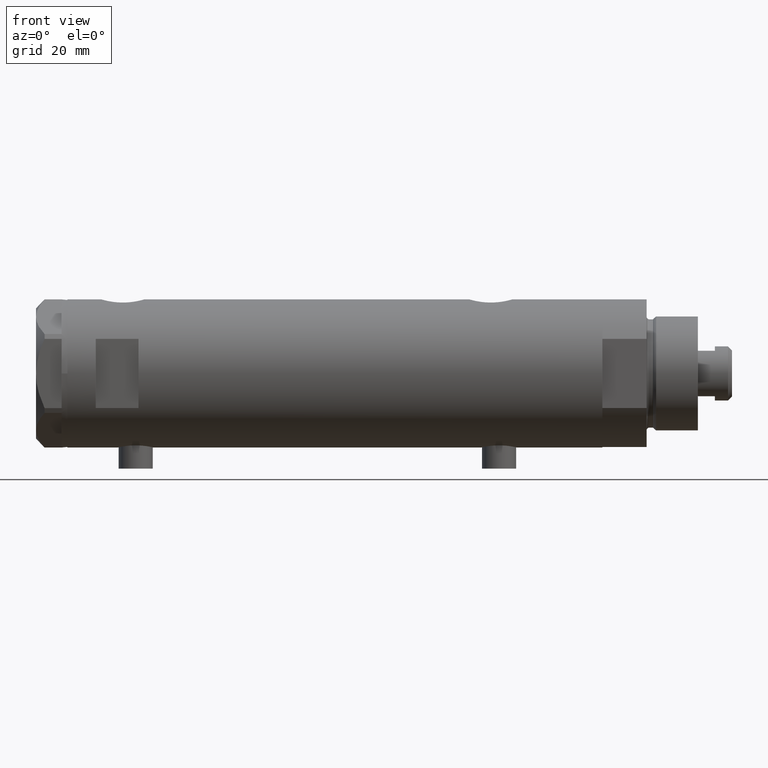
[diagram: clean part render]
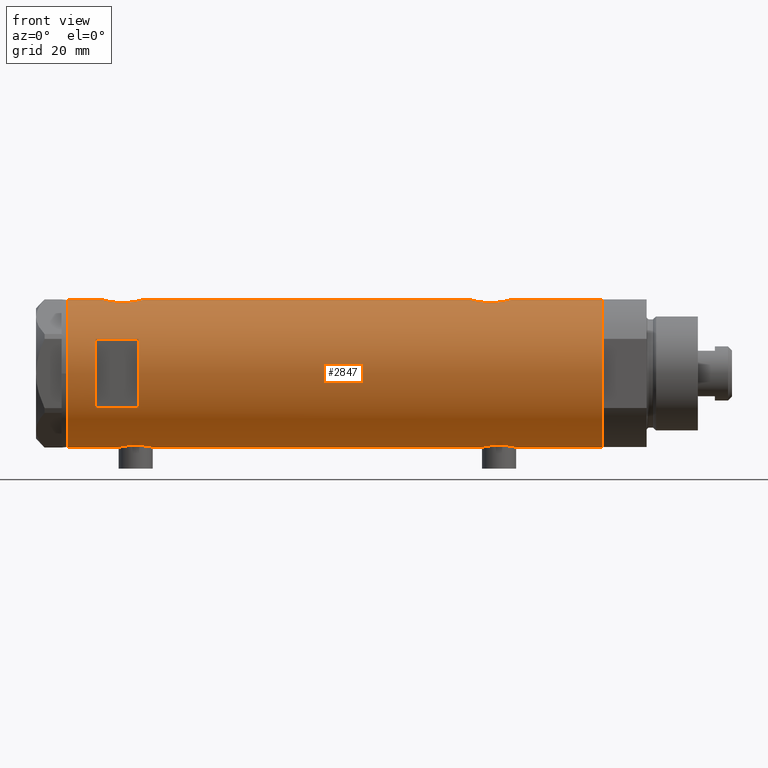
[diagram: same view with one face highlighted and labeled with its STEP entity id]
A machine part, front view. The second image highlights one B-rep face of the part: STEP entity #2847.
In plain terms, the highlighted cylindrical surface (partial cylindrical patch) has radius 26 mm, axis along (-1, -0, 0).
Its self-contained STEP definition (entity closure, byte-faithful):
#23 = CARTESIAN_POINT ( 'NONE',  ( -25.85288666140180069, -2.767917424206677524, 64.34257790010329359 ) ) ;
#36 = CARTESIAN_POINT ( 'NONE',  ( -25.81160981652327635, -3.129523010631801938, -63.06392973722074657 ) ) ;
#50 = AXIS2_PLACEMENT_3D ( 'NONE', #828, #2131, #2503 ) ;
#53 = CARTESIAN_POINT ( 'NONE',  ( 0.000000000000000000, 0.000000000000000000, 83.95000000000000284 ) ) ;
#71 = CARTESIAN_POINT ( 'NONE',  ( 0.000000000000000000, 0.000000000000000000, 68.95000000000008811 ) ) ;
#100 = CARTESIAN_POINT ( 'NONE',  ( 25.89059789403177447, -2.425642437452257383, -47.63622552757698969 ) ) ;
#122 = CARTESIAN_POINT ( 'NONE',  ( -25.74330903162726258, -3.648508829439215617, 75.02867714715800673 ) ) ;
#123 = VECTOR ( 'NONE', #4469, 1000.000000000000000 ) ;
#125 = CARTESIAN_POINT ( 'NONE',  ( 25.98599366666249466, -0.9828433289544072915, -47.29811598276526752 ) ) ;
#142 = DIRECTION ( 'NONE',  ( 0.000000000000000000, 0.000000000000000000, 1.000000000000000000 ) ) ;
#149 = CARTESIAN_POINT ( 'NONE',  ( -25.31538696791482224, -5.929326713517952818, 71.96796632208102551 ) ) ;
#158 = CARTESIAN_POINT ( 'NONE',  ( 25.59500516383205948, -4.575229401795803952, 68.50212244934583339 ) ) ;
#175 = CARTESIAN_POINT ( 'NONE',  ( 24.96672817551788270, -7.257586026187393458, -52.79615800278703119 ) ) ;
#183 = CARTESIAN_POINT ( 'NONE',  ( -25.67167563980648737, -4.129238867693854509, -62.35934056431106143 ) ) ;
#192 = CARTESIAN_POINT ( 'NONE',  ( 25.62983961939740141, -4.376509667782454649, -60.84558499042960733 ) ) ;
#226 = VERTEX_POINT ( 'NONE', #3401 ) ;
#237 = CARTESIAN_POINT ( 'NONE',  ( 25.93098857934040424, -1.953835360821274847, -62.00773664702559529 ) ) ;
#259 = CARTESIAN_POINT ( 'NONE',  ( 25.27534302296961854, -6.097250460344746159, -50.37590386902925843 ) ) ;
#304 = VERTEX_POINT ( 'NONE', #4218 ) ;
#306 = ORIENTED_EDGE ( 'NONE', *, *, #864, .F. ) ;
#338 = CARTESIAN_POINT ( 'NONE',  ( 24.89475831528844907, -7.500067228253129770, 73.95662571746466085 ) ) ;
#361 = ORIENTED_EDGE ( 'NONE', *, *, #437, .T. ) ;
#365 = CARTESIAN_POINT ( 'NONE',  ( 25.01107424167501136, -7.102941973849612012, 72.02937151337422961 ) ) ;
#366 = CARTESIAN_POINT ( 'NONE',  ( 0.000000000000000000, 0.000000000000000000, 93.95000000000000284 ) ) ;
#371 = CIRCLE ( 'NONE', #920, 26.00000000000000355 ) ;
#379 = LINE ( 'NONE', #1849, #2106 ) ;
#389 = VERTEX_POINT ( 'NONE', #4680 ) ;
#392 = CARTESIAN_POINT ( 'NONE',  ( 25.31004928890825312, -5.952041021437449508, 79.01980599883506784 ) ) ;
#400 = CARTESIAN_POINT ( 'NONE',  ( -25.95218276861526263, -1.627663810194431404, 63.90149019612397296 ) ) ;
#414 = CARTESIAN_POINT ( 'NONE',  ( 25.00829008792691965, -7.115081037226463678, 76.87301003740822125 ) ) ;
#423 = CARTESIAN_POINT ( 'NONE',  ( -25.42977453177915592, -5.420307583276858132, 66.81187728206637644 ) ) ;
#437 = EDGE_CURVE ( 'NONE', #1170, #389, #3562, .T. ) ;
#456 = FACE_OUTER_BOUND ( 'NONE', #4046, .T. ) ;
#460 = CARTESIAN_POINT ( 'NONE',  ( -25.95218276861526618, -1.627663810194431626, -63.69850980387604977 ) ) ;
#489 = VERTEX_POINT ( 'NONE', #4796 ) ;
#492 = CARTESIAN_POINT ( 'NONE',  ( -12.12435565298214080, -23.00000000000000355, 68.94999999999998863 ) ) ;
#517 = CARTESIAN_POINT ( 'NONE',  ( -25.57167894663063024, -4.701762988462085069, 74.07280450192421029 ) ) ;
#530 = LINE ( 'NONE', #3123, #1600 ) ;
#568 = CARTESIAN_POINT ( 'NONE',  ( -25.28680988956730147, -6.048472998962280300, 68.32372305811757940 ) ) ;
#569 = CARTESIAN_POINT ( 'NONE',  ( 25.17510548814053095, -6.503212750695464450, -50.98238212184652696 ) ) ;
#585 = CARTESIAN_POINT ( 'NONE',  ( -25.49846181844014481, -5.083495422175113632, 73.59177503382601060 ) ) ;
#602 = CARTESIAN_POINT ( 'NONE',  ( -25.25025691038241860, -6.198787452305317025, -58.47441165395796503 ) ) ;
#614 = CARTESIAN_POINT ( 'NONE',  ( 25.72912156655465665, -3.765948295762491238, -61.25442975399222689 ) ) ;
#626 = CARTESIAN_POINT ( 'NONE',  ( -25.92364458890659762, -2.026637113504532905, -51.72369009308527410 ) ) ;
#666 = CARTESIAN_POINT ( 'NONE',  ( -25.85385060263651269, -2.778671585188182913, -52.03685548695762719 ) ) ;
#698 = CARTESIAN_POINT ( 'NONE',  ( 26.00000000000000355, -3.975028449552882818E-20, 81.94999999999998863 ) ) ;
#748 = ORIENTED_EDGE ( 'NONE', *, *, #4461, .F. ) ;
#750 = CARTESIAN_POINT ( 'NONE',  ( 25.52449676677459678, -4.953491517965891155, 68.81325508665931068 ) ) ;
#751 = VECTOR ( 'NONE', #1400, 1000.000000000000000 ) ;
#786 = CARTESIAN_POINT ( 'NONE',  ( 25.89059789403177447, -2.425642437452259603, 81.56377447242300605 ) ) ;
#796 = CARTESIAN_POINT ( 'NONE',  ( -25.99036913299955742, -0.8159609457881448202, 63.73968856968108554 ) ) ;
#797 = CARTESIAN_POINT ( 'NONE',  ( 12.12435565298214080, -23.00000000000000355, 83.95000000000000284 ) ) ;
#828 = CARTESIAN_POINT ( 'NONE',  ( 0.000000000000000000, 0.000000000000000000, -93.95000000000000284 ) ) ;
#864 = EDGE_CURVE ( 'NONE', #489, #389, #2648, .T. ) ;
#873 = EDGE_LOOP ( 'NONE', ( #1314, #3168, #4818, #2717 ) ) ;
#880 = CARTESIAN_POINT ( 'NONE',  ( -25.25769689814629970, -6.168504065326076535, -58.67646635296745927 ) ) ;
#902 = CARTESIAN_POINT ( 'NONE',  ( -25.42883439573800430, -5.424786127492344789, -54.51918542739093709 ) ) ;
#912 = CARTESIAN_POINT ( 'NONE',  ( 24.96970063328116751, -7.247045583599693863, -56.69719214854801947 ) ) ;
#920 = AXIS2_PLACEMENT_3D ( 'NONE', #951, #4701, #4330 ) ;
#938 = CARTESIAN_POINT ( 'NONE',  ( -25.24022290516698774, -6.239518219915429320, 69.53402784061570685 ) ) ;
#940 = CARTESIAN_POINT ( 'NONE',  ( 24.95200646071794282, -7.307522494171283967, -56.45607564187280758 ) ) ;
#945 = CARTESIAN_POINT ( 'NONE',  ( 26.00000000000000355, -2.747580718823405516E-15, 66.95000000000000284 ) ) ;
#949 = CARTESIAN_POINT ( 'NONE',  ( -25.59645788645699582, -4.565358797148525660, -53.37669470796521409 ) ) ;
#951 = CARTESIAN_POINT ( 'NONE',  ( 0.000000000000000000, 0.000000000000000000, -93.95000000000000284 ) ) ;
#961 = CARTESIAN_POINT ( 'NONE',  ( 25.00829008792691255, -7.115081037226466343, -52.32698996259181001 ) ) ;
#965 = CARTESIAN_POINT ( 'NONE',  ( 25.62983961939740496, -4.376509667782460866, 68.35441500957041683 ) ) ;
#1026 = EDGE_CURVE ( 'NONE', #2994, #4811, #4562, .T. ) ;
#1097 = CARTESIAN_POINT ( 'NONE',  ( 24.92415241886516952, -7.401968919186677986, 75.68323537444817362 ) ) ;
#1121 = CARTESIAN_POINT ( 'NONE',  ( 25.48871066912673911, -5.133852125086511897, 68.97709693256024366 ) ) ;
#1130 = EDGE_CURVE ( 'NONE', #4285, #4133, #3666, .T. ) ;
#1150 = CARTESIAN_POINT ( 'NONE',  ( 25.11342038069226845, -6.734617143597199984, 77.78770695790493050 ) ) ;
#1170 = VERTEX_POINT ( 'NONE', #2142 ) ;
#1213 = CARTESIAN_POINT ( 'NONE',  ( 26.00000000000000355, 0.000000000000000000, -93.95000000000000284 ) ) ;
#1263 = CARTESIAN_POINT ( 'NONE',  ( 25.31004928890824957, -5.952041021437452173, -50.18019400116494211 ) ) ;
#1266 = VERTEX_POINT ( 'NONE', #1213 ) ;
#1267 = VERTEX_POINT ( 'NONE', #797 ) ;
#1275 = CARTESIAN_POINT ( 'NONE',  ( -25.38744165544137488, -5.612847683295917989, -60.42987583238479488 ) ) ;
#1282 = CARTESIAN_POINT ( 'NONE',  ( -25.99999999999999289, -0.4144764235405741237, 76.19999999999998863 ) ) ;
#1297 = CARTESIAN_POINT ( 'NONE',  ( -25.24765475072630139, -6.209883762780014749, -56.83321815644903552 ) ) ;
#1308 = CARTESIAN_POINT ( 'NONE',  ( -25.64593536028936427, -4.278686337618962554, 74.51031602960878786 ) ) ;
#1314 = ORIENTED_EDGE ( 'NONE', *, *, #3191, .F. ) ;
#1332 = VECTOR ( 'NONE', #1376, 1000.000000000000000 ) ;
#1334 = CARTESIAN_POINT ( 'NONE',  ( -25.85385060263650914, -2.778671585188189574, 75.56314451304240265 ) ) ;
#1336 = CARTESIAN_POINT ( 'NONE',  ( 24.90947356773249766, -7.451722770779341865, -55.73190841828151321 ) ) ;
#1371 = EDGE_CURVE ( 'NONE', #1267, #226, #2808, .T. ) ;
#1376 = DIRECTION ( 'NONE',  ( 0.000000000000000000, 0.000000000000000000, 1.000000000000000000 ) ) ;
#1400 = DIRECTION ( 'NONE',  ( 0.000000000000000000, 0.000000000000000000, 1.000000000000000000 ) ) ;
#1537 = CARTESIAN_POINT ( 'NONE',  ( -25.78943824387523520, -3.306687742228914484, 64.64245861216537037 ) ) ;
#1552 = CARTESIAN_POINT ( 'NONE',  ( 25.11243836838846022, -6.738202653785830165, 71.12043350844841427 ) ) ;
#1576 = ORIENTED_EDGE ( 'NONE', *, *, #2464, .F. ) ;
#1580 = DIRECTION ( 'NONE',  ( 1.776356839400250465E-15, 1.000000000000000000, 4.803849625781927035E-15 ) ) ;
#1592 = CARTESIAN_POINT ( 'NONE',  ( -26.00000000000000355, 1.227111019500118713E-15, 76.20000000000001705 ) ) ;
#1596 = CARTESIAN_POINT ( 'NONE',  ( -25.87202607293667000, -2.583404329177994008, -63.34473666854513141 ) ) ;
#1600 = VECTOR ( 'NONE', #2776, 1000.000000000000000 ) ;
#1635 = CARTESIAN_POINT ( 'NONE',  ( 25.52567976009756379, -4.956266804246105551, -49.09980072540905383 ) ) ;
#1692 = CARTESIAN_POINT ( 'NONE',  ( -25.31551596256916170, -5.928819821281962277, -59.67011491904084153 ) ) ;
#1701 = CARTESIAN_POINT ( 'NONE',  ( -25.95206678899177888, -1.628763264760248353, 75.99800813330216442 ) ) ;
#1713 = CARTESIAN_POINT ( 'NONE',  ( 25.98569226047905900, -0.9886551788957337328, 66.99917623399824151 ) ) ;
#1716 = EDGE_CURVE ( 'NONE', #1266, #4133, #379, .T. ) ;
#1721 = CARTESIAN_POINT ( 'NONE',  ( -25.23763877699557412, -6.249927116972443741, 69.74164472334535958 ) ) ;
#1734 = ORIENTED_EDGE ( 'NONE', *, *, #1130, .F. ) ;
#1746 = CARTESIAN_POINT ( 'NONE',  ( 25.98569226047905190, -0.9886551788957271825, -62.20082376600176133 ) ) ;
#1772 = CARTESIAN_POINT ( 'NONE',  ( 24.91324908721445652, -7.438459228814655155, -53.75982500625809024 ) ) ;
#1807 = CARTESIAN_POINT ( 'NONE',  ( -25.81232680456766815, -3.137210741985122286, -52.22886342778421209 ) ) ;
#1817 = LINE ( 'NONE', #4038, #3750 ) ;
#1849 = CARTESIAN_POINT ( 'NONE',  ( 26.00000000000000355, 0.000000000000000000, -93.95000000000000284 ) ) ;
#1858 = CARTESIAN_POINT ( 'NONE',  ( 25.78993643992928853, -3.329561377902402697, -48.01178439721262947 ) ) ;
#1862 = CIRCLE ( 'NONE', #3106, 26.00000000000000355 ) ;
#1893 = CARTESIAN_POINT ( 'NONE',  ( 24.89854802586675575, -7.487520416261734368, 74.94815683577905929 ) ) ;
#1907 = ORIENTED_EDGE ( 'NONE', *, *, #1026, .F. ) ;
#1921 = CARTESIAN_POINT ( 'NONE',  ( 24.89478872726945724, -7.499966281647698629, 74.69821850634782834 ) ) ;
#1929 = CARTESIAN_POINT ( 'NONE',  ( -25.31551596256916525, -5.928819821281963165, 67.92988508095919542 ) ) ;
#1930 = DIRECTION ( 'NONE',  ( -0.000000000000000000, 0.000000000000000000, -1.000000000000000000 ) ) ;
#1966 = CYLINDRICAL_SURFACE ( 'NONE', #50, 26.00000000000000355 ) ;
#1971 = CARTESIAN_POINT ( 'NONE',  ( -25.92425332714051223, -2.018894156999442746, -63.57896120675329854 ) ) ;
#1973 = CARTESIAN_POINT ( 'NONE',  ( -26.00000000000000355, -8.503928565788675107E-16, -51.39999999999999858 ) ) ;
#1983 = CARTESIAN_POINT ( 'NONE',  ( 26.00000000000001066, -0.4910237949823163528, -47.25000000000001421 ) ) ;
#2003 = CARTESIAN_POINT ( 'NONE',  ( -26.00000000000000355, 1.227111019500118713E-15, 76.20000000000001705 ) ) ;
#2018 = CARTESIAN_POINT ( 'NONE',  ( -25.28632996747171546, -6.050474653715422590, -56.03088129158463460 ) ) ;
#2056 = CARTESIAN_POINT ( 'NONE',  ( -25.71926338401910073, -3.813768894920909425, 74.90572139833817289 ) ) ;
#2078 = CARTESIAN_POINT ( 'NONE',  ( -25.25025691038242215, -6.198787452305312584, 69.12558834604207902 ) ) ;
#2079 = CARTESIAN_POINT ( 'NONE',  ( 25.48871066912673200, -5.133852125086511009, -60.22290306743978050 ) ) ;
#2083 = CARTESIAN_POINT ( 'NONE',  ( 25.88994451797512397, -2.432613607265604383, 67.33859031286799279 ) ) ;
#2096 = CARTESIAN_POINT ( 'NONE',  ( -25.67063510297210271, -4.128418051804843003, 74.64682575271267240 ) ) ;
#2106 = VECTOR ( 'NONE', #3002, 1000.000000000000000 ) ;
#2122 = CARTESIAN_POINT ( 'NONE',  ( 25.88994451797511331, -2.432613607265599498, -61.86140968713201005 ) ) ;
#2131 = DIRECTION ( 'NONE',  ( 0.000000000000000000, 0.000000000000000000, 1.000000000000000000 ) ) ;
#2142 = CARTESIAN_POINT ( 'NONE',  ( 26.00000000000000355, -3.975028449552882818E-20, 81.94999999999998863 ) ) ;
#2178 = CARTESIAN_POINT ( 'NONE',  ( -26.00000000000000355, -8.503928565788675107E-16, -51.39999999999999858 ) ) ;
#2182 = CARTESIAN_POINT ( 'NONE',  ( 24.91324908721446008, -7.438459228814657820, 75.44017499374190550 ) ) ;
#2191 = CARTESIAN_POINT ( 'NONE',  ( -26.00000000000000355, 3.184081677783118585E-15, -93.95000000000000284 ) ) ;
#2201 = ORIENTED_EDGE ( 'NONE', *, *, #3944, .T. ) ;
#2214 = LINE ( 'NONE', #2191, #123 ) ;
#2224 = VERTEX_POINT ( 'NONE', #4839 ) ;
#2225 = CARTESIAN_POINT ( 'NONE',  ( 25.93085545515512891, -1.956676574435509686, -47.49272963169730843 ) ) ;
#2245 = EDGE_CURVE ( 'NONE', #4811, #304, #2214, .T. ) ;
#2264 = CARTESIAN_POINT ( 'NONE',  ( 25.27534302296962565, -6.097250460344746159, 78.82409613097077283 ) ) ;
#2295 = CARTESIAN_POINT ( 'NONE',  ( -25.72076778631230454, -3.815670258243488266, -62.61687810531882548 ) ) ;
#2303 = CARTESIAN_POINT ( 'NONE',  ( -25.52190669608696183, -4.968444991210429151, 66.13658907807516130 ) ) ;
#2329 = CARTESIAN_POINT ( 'NONE',  ( -26.00000000000000355, 3.184077527325983904E-15, 63.70000000000000995 ) ) ;
#2357 = CARTESIAN_POINT ( 'NONE',  ( -26.00000000000001066, -0.4086738135806035066, 63.70000000000000995 ) ) ;
#2382 = VERTEX_POINT ( 'NONE', #3071 ) ;
#2392 = CARTESIAN_POINT ( 'NONE',  ( -25.23758491649666880, -6.250144606721711682, -57.23988300428195686 ) ) ;
#2393 = CARTESIAN_POINT ( 'NONE',  ( 26.00000000000000355, 0.000000000000000000, -93.95000000000000284 ) ) ;
#2405 = VERTEX_POINT ( 'NONE', #2581 ) ;
#2426 = CARTESIAN_POINT ( 'NONE',  ( 25.01107424167501136, -7.102941973849614676, -57.17062848662576613 ) ) ;
#2446 = CARTESIAN_POINT ( 'NONE',  ( -25.28632996747172967, -6.050474653715409268, 71.56911870841541656 ) ) ;
#2448 = CARTESIAN_POINT ( 'NONE',  ( 25.03461301890608581, -7.019803056070506031, -57.40183183106895370 ) ) ;
#2464 = EDGE_CURVE ( 'NONE', #1170, #2224, #4707, .T. ) ;
#2467 = CARTESIAN_POINT ( 'NONE',  ( 24.92415241886515176, -7.401968919186680651, -53.51676462555185054 ) ) ;
#2490 = CARTESIAN_POINT ( 'NONE',  ( 24.89475831528845262, -7.500067228253130658, -55.24337428253536331 ) ) ;
#2503 = DIRECTION ( 'NONE',  ( 1.000000000000000000, 0.000000000000000000, 0.000000000000000000 ) ) ;
#2516 = CARTESIAN_POINT ( 'NONE',  ( 25.11342038069227200, -6.734617143597207978, -51.41229304209507234 ) ) ;
#2518 = CARTESIAN_POINT ( 'NONE',  ( 26.00000000000000355, -3.975025925197986111E-20, -47.25000000000000000 ) ) ;
#2554 = CARTESIAN_POINT ( 'NONE',  ( 25.38125492692910967, -5.649348210287292282, 69.49305665653604080 ) ) ;
#2577 = CARTESIAN_POINT ( 'NONE',  ( 26.00000000000000355, 0.000000000000000000, -93.95000000000000284 ) ) ;
#2581 = CARTESIAN_POINT ( 'NONE',  ( -26.00000000000000355, 3.184081677783118585E-15, -93.95000000000000284 ) ) ;
#2585 = CARTESIAN_POINT ( 'NONE',  ( -26.00000000000000355, 3.184081677783118585E-15, -93.95000000000000284 ) ) ;
#2633 = CARTESIAN_POINT ( 'NONE',  ( -25.78943824387522454, -3.306687742228910487, -62.95754138783468790 ) ) ;
#2642 = CARTESIAN_POINT ( 'NONE',  ( -25.92425332714051933, -2.018894156999441858, 64.02103879324673130 ) ) ;
#2648 = CIRCLE ( 'NONE', #4113, 26.00000000000000355 ) ;
#2649 = ORIENTED_EDGE ( 'NONE', *, *, #3281, .T. ) ;
#2664 = CARTESIAN_POINT ( 'NONE',  ( 24.96672817551789691, -7.257586026187390793, 76.40384199721299296 ) ) ;
#2673 = CARTESIAN_POINT ( 'NONE',  ( -25.57228991600092272, -4.705691472451695390, 65.81660309875348958 ) ) ;
#2717 = ORIENTED_EDGE ( 'NONE', *, *, #2966, .F. ) ;
#2776 = DIRECTION ( 'NONE',  ( 0.000000000000000000, 0.000000000000000000, 1.000000000000000000 ) ) ;
#2781 = CARTESIAN_POINT ( 'NONE',  ( -25.28680988956729436, -6.048472998962281189, -59.27627694188244334 ) ) ;
#2808 = CIRCLE ( 'NONE', #4290, 26.00000000000000355 ) ;
#2811 = CARTESIAN_POINT ( 'NONE',  ( 25.30930190055640239, -5.959775463244125326, -59.32974043478028392 ) ) ;
#2826 = VERTEX_POINT ( 'NONE', #1592 ) ;
#2833 = CARTESIAN_POINT ( 'NONE',  ( 25.52449676677459678, -4.953491517965876945, -60.38674491334074190 ) ) ;
#2841 = CARTESIAN_POINT ( 'NONE',  ( -25.23763877699556701, -6.249927116972449070, -57.85835527665467026 ) ) ;
#2847 = ADVANCED_FACE ( 'NONE', ( #456, #3818 ), #1966, .T. ) ;
#2848 = CARTESIAN_POINT ( 'NONE',  ( -25.38662204309616399, -5.616507264474307703, 72.72199377719323365 ) ) ;
#2859 = CARTESIAN_POINT ( 'NONE',  ( -25.74330903162726614, -3.648508829439221390, -52.57132285284203022 ) ) ;
#2875 = CARTESIAN_POINT ( 'NONE',  ( 25.11243836838845667, -6.738202653785825724, -58.07956649155156725 ) ) ;
#2887 = ORIENTED_EDGE ( 'NONE', *, *, #2245, .F. ) ;
#2897 = CARTESIAN_POINT ( 'NONE',  ( 26.00000000000000355, 3.343657407582877388E-16, -62.25000000000000000 ) ) ;
#2919 = DIRECTION ( 'NONE',  ( -0.000000000000000000, -0.000000000000000000, -1.000000000000000000 ) ) ;
#2932 = B_SPLINE_CURVE_WITH_KNOTS ( 'NONE', 3,
 ( #2329, #2357, #796, #400, #2642, #3387, #23, #3833, #1537, #3024, #4522, #2673, #2303, #423, #3781, #1929, #568, #3929, #2078, #938, #1721, #3209, #3950, #2446, #149, #2848, #4251, #585, #3531, #517, #4643, #1308, #2096, #2056, #122, #4686, #1334, #4664, #1701, #4339, #1282, #2003 ),
 .UNSPECIFIED., .F., .F.,
 ( 4, 2, 2, 2, 2, 2, 2, 2, 2, 2, 2, 2, 2, 2, 2, 2, 2, 2, 2, 2, 4 ),
 ( 0.01961238453869444676, 0.02083783025472769543, 0.02206327597076094410, 0.02267599882877755976, 0.02328872168679417543, 0.02451416740282743104, 0.02573961311886067971, 0.02696505883489393532, 0.02819050455092719093, 0.02880322740894379618, 0.02941595026696040144, 0.03064139598299361195, 0.03186684169902682245, 0.03309228741506003296, 0.03370501027307663822, 0.03431773313109324347, 0.03493045598910984872, 0.03554317884712646092, 0.03676862456315967143, 0.03799407027919288193, 0.03921951599522609938 ),
 .UNSPECIFIED. ) ;
#2966 = EDGE_CURVE ( 'NONE', #2382, #1267, #3615, .T. ) ;
#2990 = CARTESIAN_POINT ( 'NONE',  ( -25.85288666140180069, -2.767917424206677968, -63.25742209989670783 ) ) ;
#2994 = VERTEX_POINT ( 'NONE', #4373 ) ;
#3002 = DIRECTION ( 'NONE',  ( 0.000000000000000000, 0.000000000000000000, 1.000000000000000000 ) ) ;
#3003 = VECTOR ( 'NONE', #3010, 1000.000000000000000 ) ;
#3010 = DIRECTION ( 'NONE',  ( 0.000000000000000000, 0.000000000000000000, 1.000000000000000000 ) ) ;
#3024 = CARTESIAN_POINT ( 'NONE',  ( -25.72076778631230098, -3.815670258243490043, 64.98312189468120437 ) ) ;
#3044 = CARTESIAN_POINT ( 'NONE',  ( 25.98599366666249466, -0.9828433289544105111, 81.90188401723473532 ) ) ;
#3071 = CARTESIAN_POINT ( 'NONE',  ( 12.12435565298214080, -23.00000000000000355, 68.94999999999998863 ) ) ;
#3106 = AXIS2_PLACEMENT_3D ( 'NONE', #71, #3455, #1580 ) ;
#3116 = CARTESIAN_POINT ( 'NONE',  ( 25.41756773306326522, -5.475260495868973898, -49.61859126343051685 ) ) ;
#3123 = CARTESIAN_POINT ( 'NONE',  ( -26.00000000000000355, 3.184081677783118585E-15, -93.95000000000000284 ) ) ;
#3168 = ORIENTED_EDGE ( 'NONE', *, *, #4571, .F. ) ;
#3172 = CARTESIAN_POINT ( 'NONE',  ( -25.31538696791482224, -5.929326713517960812, -55.63203367791898302 ) ) ;
#3183 = VERTEX_POINT ( 'NONE', #492 ) ;
#3191 = EDGE_CURVE ( 'NONE', #3183, #2382, #1862, .T. ) ;
#3209 = CARTESIAN_POINT ( 'NONE',  ( -25.23758491649666524, -6.250144606721703688, 70.36011699571805877 ) ) ;
#3219 = CARTESIAN_POINT ( 'NONE',  ( -25.99009752186833211, -0.8230863847107499076, -51.44082928593319082 ) ) ;
#3254 = CARTESIAN_POINT ( 'NONE',  ( 12.12435565298214080, -23.00000000000000355, -93.95000000000000284 ) ) ;
#3257 = CARTESIAN_POINT ( 'NONE',  ( 25.38125492692910612, -5.649348210287294059, -59.70694334346394072 ) ) ;
#3281 = EDGE_CURVE ( 'NONE', #2405, #1266, #371, .T. ) ;
#3293 = CARTESIAN_POINT ( 'NONE',  ( -26.00000000000000355, -0.4144764235405725139, -51.39999999999999147 ) ) ;
#3323 = CARTESIAN_POINT ( 'NONE',  ( 25.52567976009756379, -4.956266804246106439, 80.10019927459092060 ) ) ;
#3348 = LINE ( 'NONE', #2577, #3003 ) ;
#3351 = CARTESIAN_POINT ( 'NONE',  ( 24.90947356773250121, -7.451722770779340088, 73.46809158171848253 ) ) ;
#3387 = CARTESIAN_POINT ( 'NONE',  ( -25.87202607293667000, -2.583404329177993120, 64.25526333145488422 ) ) ;
#3399 = CARTESIAN_POINT ( 'NONE',  ( 25.03461301890608226, -7.019803056070506031, 71.79816816893104203 ) ) ;
#3401 = CARTESIAN_POINT ( 'NONE',  ( -12.12435565298214080, -23.00000000000000355, 83.95000000000000284 ) ) ;
#3455 = DIRECTION ( 'NONE',  ( -0.000000000000000000, -4.625929269271486900E-15, 1.000000000000000000 ) ) ;
#3490 = EDGE_CURVE ( 'NONE', #2405, #2994, #530, .T. ) ;
#3519 = CARTESIAN_POINT ( 'NONE',  ( -25.42977453177915592, -5.420307583276862573, -60.78812271793365340 ) ) ;
#3531 = CARTESIAN_POINT ( 'NONE',  ( -25.52274351135604746, -4.960534548086194206, 73.75751745340734544 ) ) ;
#3555 = CARTESIAN_POINT ( 'NONE',  ( 26.00000000000000711, -0.4982617809740558790, 66.95000000000001705 ) ) ;
#3562 = LINE ( 'NONE', #2393, #4739 ) ;
#3607 = CARTESIAN_POINT ( 'NONE',  ( -25.64593536028936782, -4.278686337618967883, -53.08968397039122777 ) ) ;
#3615 = LINE ( 'NONE', #3254, #751 ) ;
#3618 = CARTESIAN_POINT ( 'NONE',  ( 24.89854802586676286, -7.487520416261737921, -54.25184316422095065 ) ) ;
#3663 = CARTESIAN_POINT ( 'NONE',  ( 24.95200646071794637, -7.307522494171281302, 72.74392435812723079 ) ) ;
#3666 = B_SPLINE_CURVE_WITH_KNOTS ( 'NONE', 3,
 ( #4272, #1983, #125, #2225, #100, #1858, #4595, #4230, #1635, #3116, #4621, #1263, #259, #569, #2516, #961, #175, #2467, #1772, #3618, #3999, #2490, #1336, #940, #912, #2426, #2448, #2875, #4366, #2811, #3257, #2079, #2833, #3951, #192, #614, #3977, #2122, #237, #1746, #4762, #2897 ),
 .UNSPECIFIED., .F., .F.,
 ( 4, 2, 2, 2, 2, 2, 2, 2, 2, 2, 2, 2, 2, 2, 2, 2, 2, 2, 2, 2, 4 ),
 ( 0.02357432247332888128, 0.02504731828495719570, 0.02652031409658551359, 0.02799330990821382800, 0.02946630571984214589, 0.03020280362565630136, 0.03093930153147046030, 0.03241229734309879207, 0.03388529315472712383, 0.03462179106054129318, 0.03535828896635545560, 0.03683128477798380818, 0.03756778268379799834, 0.03830428058961218157, 0.03977727640124056885, 0.04125027221286896306, 0.04198677011868315323, 0.04272326802449734340, 0.04419626383612573067, 0.04566925964775411795, 0.04714225545938250522 ),
 .UNSPECIFIED. ) ;
#3684 = CARTESIAN_POINT ( 'NONE',  ( -25.67063510297209916, -4.128418051804850109, -52.95317424728735034 ) ) ;
#3690 = CARTESIAN_POINT ( 'NONE',  ( 25.78993643992928853, -3.329561377902403585, 81.18821560278736627 ) ) ;
#3717 = CARTESIAN_POINT ( 'NONE',  ( 25.17510548814052740, -6.503212750695460009, 78.21761787815347589 ) ) ;
#3745 = CARTESIAN_POINT ( 'NONE',  ( 25.59665538672496155, -4.580438224580674067, 80.40889127712388529 ) ) ;
#3750 = VECTOR ( 'NONE', #2919, 1000.000000000000000 ) ;
#3781 = CARTESIAN_POINT ( 'NONE',  ( -25.38744165544136777, -5.612847683295913548, 67.17012416761525628 ) ) ;
#3818 = FACE_BOUND ( 'NONE', #873, .T. ) ;
#3823 = CARTESIAN_POINT ( 'NONE',  ( -25.99036913299956097, -0.8159609457881454864, -63.86031143031890878 ) ) ;
#3833 = CARTESIAN_POINT ( 'NONE',  ( -25.81160981652327635, -3.129523010631801494, 64.53607026277929037 ) ) ;
#3871 = CARTESIAN_POINT ( 'NONE',  ( -25.57228991600092627, -4.705691472451703383, -61.78339690124654027 ) ) ;
#3929 = CARTESIAN_POINT ( 'NONE',  ( -25.25769689814630325, -6.168504065326069430, 68.92353364703252794 ) ) ;
#3944 = EDGE_CURVE ( 'NONE', #4285, #2224, #3348, .T. ) ;
#3950 = CARTESIAN_POINT ( 'NONE',  ( -25.24765475072630139, -6.209883762780004091, 70.76678184355101564 ) ) ;
#3951 = CARTESIAN_POINT ( 'NONE',  ( 25.59500516383205593, -4.575229401795787965, -60.69787755065421919 ) ) ;
#3957 = CARTESIAN_POINT ( 'NONE',  ( 25.78902964777117290, -3.336582972512956768, 67.71524159542266830 ) ) ;
#3961 = ORIENTED_EDGE ( 'NONE', *, *, #4697, .F. ) ;
#3965 = CARTESIAN_POINT ( 'NONE',  ( -25.49846181844014126, -5.083495422175140277, -54.00822496617402635 ) ) ;
#3975 = LINE ( 'NONE', #2585, #1332 ) ;
#3977 = CARTESIAN_POINT ( 'NONE',  ( 25.78902964777116935, -3.336582972512946554, -61.48475840457738428 ) ) ;
#3994 = DIRECTION ( 'NONE',  ( 0.000000000000000000, 0.000000000000000000, 1.000000000000000000 ) ) ;
#3999 = CARTESIAN_POINT ( 'NONE',  ( 24.89478872726946079, -7.499966281647702182, -54.50178149365218161 ) ) ;
#4010 = CARTESIAN_POINT ( 'NONE',  ( -25.71926338401910428, -3.813768894920914754, -52.69427860166185695 ) ) ;
#4034 = CARTESIAN_POINT ( 'NONE',  ( 25.41756773306325101, -5.475260495868973898, 79.58140873656945757 ) ) ;
#4038 = CARTESIAN_POINT ( 'NONE',  ( -12.12435565298214080, -23.00000000000000355, -93.95000000000000284 ) ) ;
#4046 = EDGE_LOOP ( 'NONE', ( #4099, #2649, #4771, #1734, #2201, #1576, #361, #306, #3961, #748, #2887, #1907 ) ) ;
#4060 = CARTESIAN_POINT ( 'NONE',  ( 25.38109653984943748, -5.641393955635657598, 79.39819092448753679 ) ) ;
#4099 = ORIENTED_EDGE ( 'NONE', *, *, #3490, .F. ) ;
#4107 = CARTESIAN_POINT ( 'NONE',  ( 24.96970063328117462, -7.247045583599690310, 72.50280785145199047 ) ) ;
#4108 = CARTESIAN_POINT ( 'NONE',  ( -26.00000000000000711, -0.4086738135806026739, -63.90000000000002700 ) ) ;
#4113 = AXIS2_PLACEMENT_3D ( 'NONE', #366, #3994, #4861 ) ;
#4125 = DIRECTION ( 'NONE',  ( 1.000000000000000000, 0.000000000000000000, 0.000000000000000000 ) ) ;
#4133 = VERTEX_POINT ( 'NONE', #4264 ) ;
#4167 = CARTESIAN_POINT ( 'NONE',  ( -26.00000000000000355, 3.184077527250253257E-15, -63.90000000000001279 ) ) ;
#4218 = CARTESIAN_POINT ( 'NONE',  ( -26.00000000000000355, 3.184077527325983904E-15, 63.70000000000000995 ) ) ;
#4230 = CARTESIAN_POINT ( 'NONE',  ( 25.59665538672496155, -4.580438224580676732, -48.79110872287609624 ) ) ;
#4242 = CARTESIAN_POINT ( 'NONE',  ( -25.52190669608696183, -4.968444991210430040, -61.46341092192486144 ) ) ;
#4251 = CARTESIAN_POINT ( 'NONE',  ( -25.42883439573799720, -5.424786127492320809, 73.08081457260909986 ) ) ;
#4264 = CARTESIAN_POINT ( 'NONE',  ( 26.00000000000000355, 3.343657407582877388E-16, -62.25000000000000000 ) ) ;
#4266 = CARTESIAN_POINT ( 'NONE',  ( -25.38662204309616754, -5.616507264474315697, -54.87800622280676777 ) ) ;
#4272 = CARTESIAN_POINT ( 'NONE',  ( 26.00000000000000355, -3.975025925197986111E-20, -47.25000000000000000 ) ) ;
#4285 = VERTEX_POINT ( 'NONE', #2518 ) ;
#4290 = AXIS2_PLACEMENT_3D ( 'NONE', #53, #1930, #4125 ) ;
#4310 = CARTESIAN_POINT ( 'NONE',  ( -25.57167894663062668, -4.701762988462101056, -53.52719549807584087 ) ) ;
#4330 = DIRECTION ( 'NONE',  ( 1.000000000000000000, 0.000000000000000000, 0.000000000000000000 ) ) ;
#4339 = CARTESIAN_POINT ( 'NONE',  ( -25.99009752186832856, -0.8230863847107351416, 76.15917071406683192 ) ) ;
#4366 = CARTESIAN_POINT ( 'NONE',  ( 25.17393786935995692, -6.507882790539420981, -58.51037333344031310 ) ) ;
#4373 = CARTESIAN_POINT ( 'NONE',  ( -26.00000000000000355, 3.184077527250253257E-15, -63.90000000000001279 ) ) ;
#4402 = CARTESIAN_POINT ( 'NONE',  ( -25.95206678899177888, -1.628763264760264118, -51.60199186669784410 ) ) ;
#4461 = EDGE_CURVE ( 'NONE', #304, #2826, #2932, .T. ) ;
#4462 = CARTESIAN_POINT ( 'NONE',  ( 25.93085545515512891, -1.956676574435511906, 81.70727036830264467 ) ) ;
#4469 = DIRECTION ( 'NONE',  ( 0.000000000000000000, 0.000000000000000000, 1.000000000000000000 ) ) ;
#4485 = CARTESIAN_POINT ( 'NONE',  ( 25.30930190055639528, -5.959775463244125326, 69.87025956521972603 ) ) ;
#4510 = CARTESIAN_POINT ( 'NONE',  ( 25.72873412774685775, -3.768477344985552424, 80.95287460144460567 ) ) ;
#4522 = CARTESIAN_POINT ( 'NONE',  ( -25.67167563980648026, -4.129238867693847403, 65.24065943568896841 ) ) ;
#4537 = CARTESIAN_POINT ( 'NONE',  ( 26.00000000000001066, -0.4910237949823165748, 81.95000000000001705 ) ) ;
#4562 = B_SPLINE_CURVE_WITH_KNOTS ( 'NONE', 3,
 ( #4167, #4108, #3823, #460, #1971, #1596, #2990, #36, #2633, #2295, #183, #3871, #4242, #3519, #1275, #1692, #2781, #880, #602, #4658, #2841, #2392, #1297, #2018, #3172, #4266, #902, #3965, #4679, #4310, #949, #3607, #3684, #4010, #2859, #1807, #666, #626, #4402, #3219, #3293, #2178 ),
 .UNSPECIFIED., .F., .F.,
 ( 4, 2, 2, 2, 2, 2, 2, 2, 2, 2, 2, 2, 2, 2, 2, 2, 2, 2, 2, 2, 4 ),
 ( 0.01961238453869445023, 0.02083783025472770584, 0.02206327597076096492, 0.02267599882877758405, 0.02328872168679420665, 0.02451416740282742757, 0.02573961311886065889, 0.02696505883489389022, 0.02819050455092712501, 0.02880322740894373373, 0.02941595026696033899, 0.03064139598299355643, 0.03186684169902676694, 0.03309228741505997745, 0.03370501027307658271, 0.03431773313109319490, 0.03493045598910980015, 0.03554317884712640541, 0.03676862456315962979, 0.03799407027919285418, 0.03921951599522608550 ),
 .UNSPECIFIED. ) ;
#4571 = EDGE_CURVE ( 'NONE', #226, #3183, #1817, .T. ) ;
#4595 = CARTESIAN_POINT ( 'NONE',  ( 25.72873412774685775, -3.768477344985552424, -48.24712539855535454 ) ) ;
#4621 = CARTESIAN_POINT ( 'NONE',  ( 25.38109653984943748, -5.641393955635659374, -49.80180907551250158 ) ) ;
#4629 = CARTESIAN_POINT ( 'NONE',  ( 25.93098857934040069, -1.953835360821276623, 67.19226335297439334 ) ) ;
#4643 = CARTESIAN_POINT ( 'NONE',  ( -25.59645788645699227, -4.565358797148518555, 74.22330529203480864 ) ) ;
#4658 = CARTESIAN_POINT ( 'NONE',  ( -25.24022290516698419, -6.239518219915434649, -58.06597215938433720 ) ) ;
#4664 = CARTESIAN_POINT ( 'NONE',  ( -25.92364458890660472, -2.026637113504541343, 75.87630990691478416 ) ) ;
#4679 = CARTESIAN_POINT ( 'NONE',  ( -25.52274351135604391, -4.960534548086211970, -53.84248254659268440 ) ) ;
#4680 = CARTESIAN_POINT ( 'NONE',  ( 26.00000000000000355, 0.000000000000000000, 93.95000000000000284 ) ) ;
#4686 = CARTESIAN_POINT ( 'NONE',  ( -25.81232680456766815, -3.137210741985116513, 75.37113657221577512 ) ) ;
#4692 = CARTESIAN_POINT ( 'NONE',  ( 25.72912156655466376, -3.765948295762494791, 67.94557024600780437 ) ) ;
#4697 = EDGE_CURVE ( 'NONE', #2826, #489, #3975, .T. ) ;
#4701 = DIRECTION ( 'NONE',  ( 0.000000000000000000, 0.000000000000000000, 1.000000000000000000 ) ) ;
#4707 = B_SPLINE_CURVE_WITH_KNOTS ( 'NONE', 3,
 ( #698, #4537, #3044, #4462, #786, #3690, #4510, #3745, #3323, #4034, #4060, #392, #2264, #3717, #1150, #414, #2664, #1097, #2182, #1893, #1921, #338, #3351, #3663, #4107, #365, #3399, #1552, #4860, #4485, #2554, #1121, #750, #158, #965, #4692, #3957, #2083, #4629, #1713, #3555, #945 ),
 .UNSPECIFIED., .F., .F.,
 ( 4, 2, 2, 2, 2, 2, 2, 2, 2, 2, 2, 2, 2, 2, 2, 2, 2, 2, 2, 2, 4 ),
 ( 0.02357432247332884312, 0.02504731828495717835, 0.02652031409658551359, 0.02799330990821385229, 0.02946630571984218752, 0.03020280362565635340, 0.03093930153147052275, 0.03241229734309888921, 0.03388529315472726261, 0.03462179106054144584, 0.03535828896635563601, 0.03683128477798400247, 0.03756778268379818569, 0.03830428058961236892, 0.03977727640124074232, 0.04125027221286911572, 0.04198677011868327813, 0.04272326802449745442, 0.04419626383612577231, 0.04566925964775409713, 0.04714225545938241502 ),
 .UNSPECIFIED. ) ;
#4739 = VECTOR ( 'NONE', #142, 1000.000000000000000 ) ;
#4762 = CARTESIAN_POINT ( 'NONE',  ( 25.99999999999999645, -0.4982617809740603199, -62.24999999999998579 ) ) ;
#4771 = ORIENTED_EDGE ( 'NONE', *, *, #1716, .T. ) ;
#4796 = CARTESIAN_POINT ( 'NONE',  ( -26.00000000000000355, 3.184081677783118585E-15, 93.95000000000000284 ) ) ;
#4811 = VERTEX_POINT ( 'NONE', #1973 ) ;
#4818 = ORIENTED_EDGE ( 'NONE', *, *, #1371, .F. ) ;
#4839 = CARTESIAN_POINT ( 'NONE',  ( 26.00000000000000355, -2.747580718823405516E-15, 66.95000000000000284 ) ) ;
#4860 = CARTESIAN_POINT ( 'NONE',  ( 25.17393786935995692, -6.507882790539422757, 70.68962666655967553 ) ) ;
#4861 = DIRECTION ( 'NONE',  ( 1.000000000000000000, 0.000000000000000000, 0.000000000000000000 ) ) ;